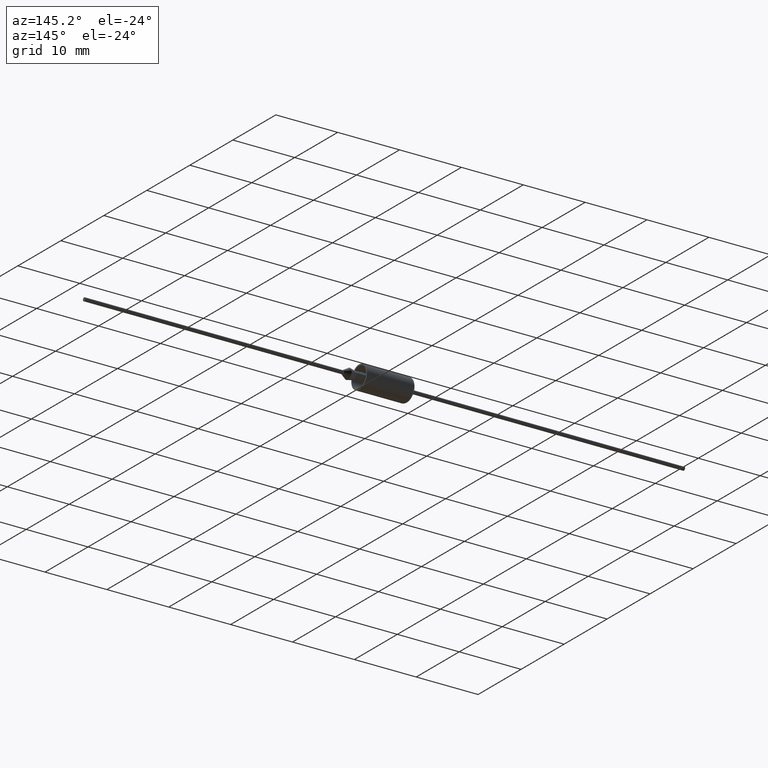
[diagram: clean part render]
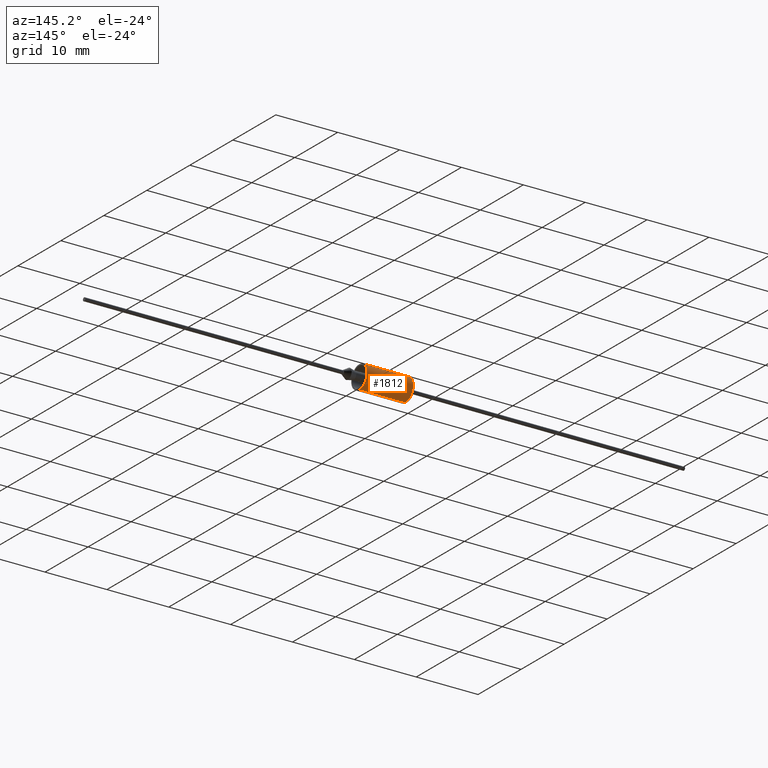
[diagram: same view with one face highlighted and labeled with its STEP entity id]
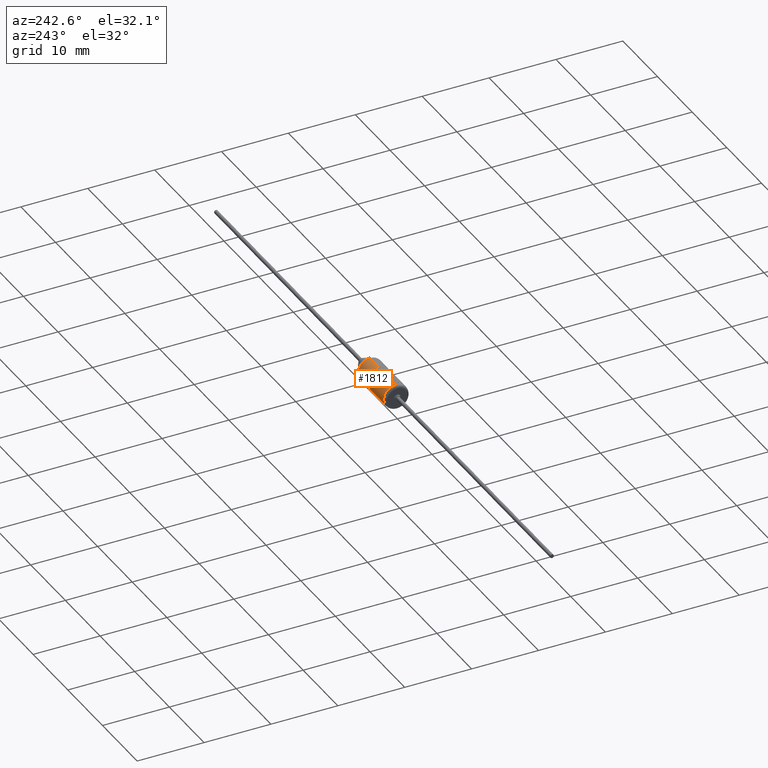
[diagram: same view with one face highlighted and labeled with its STEP entity id]
A machine part, auxiliary view. The second image highlights one B-rep face of the part: STEP entity #1812.
A second angle (auxiliary view) of the same face is appended — the face is thin or edge-on in the first view.
In plain terms, the highlighted cylindrical surface (edge-blend (fillet) strip) has radius 1.84 mm, axis along (-1, -0, -0).
Its self-contained STEP definition (entity closure, byte-faithful):
#7 = VERTEX_POINT ( 'NONE', #967 ) ;
#9 = CARTESIAN_POINT ( 'NONE',  ( 4.060353136190324900, 0.5004695805994374700, 1.770629887609102700 ) ) ;
#25 = CARTESIAN_POINT ( 'NONE',  ( 7.880000000000001700, 0.0000000000000000000, 0.0000000000000000000 ) ) ;
#30 = CARTESIAN_POINT ( 'NONE',  ( 3.914628524202696800, -2.048666033496737600E-008, 1.839846082543360500 ) ) ;
#52 = EDGE_CURVE ( 'NONE', #1911, #1219, #3604, .T. ) ;
#62 = EDGE_CURVE ( 'NONE', #7, #3639, #1597, .T. ) ;
#68 = AXIS2_PLACEMENT_3D ( 'NONE', #3329, #2017, #2989 ) ;
#74 = VERTEX_POINT ( 'NONE', #3730 ) ;
#85 = EDGE_CURVE ( 'NONE', #2042, #1550, #211, .T. ) ;
#114 = EDGE_CURVE ( 'NONE', #1891, #575, #2248, .T. ) ;
#118 = VERTEX_POINT ( 'NONE', #1448 ) ;
#125 = ORIENTED_EDGE ( 'NONE', *, *, #62, .F. ) ;
#131 = CARTESIAN_POINT ( 'NONE',  ( 3.914628524202696800, -2.048666033496737600E-008, 1.839846082543360500 ) ) ;
#141 = EDGE_CURVE ( 'NONE', #3639, #2630, #2029, .T. ) ;
#153 = LINE ( 'NONE', #4350, #3646 ) ;
#177 = EDGE_CURVE ( 'NONE', #74, #1561, #738, .T. ) ;
#190 = ORIENTED_EDGE ( 'NONE', *, *, #3815, .F. ) ;
#195 = EDGE_CURVE ( 'NONE', #3417, #1181, #1100, .T. ) ;
#203 = DIRECTION ( 'NONE',  ( -1.000000000000000000, 0.0000000000000000000, 0.0000000000000000000 ) ) ;
#211 = B_SPLINE_CURVE_WITH_KNOTS ( 'NONE', 3,
 ( #1799, #2477, #2791, #762 ),
 .UNSPECIFIED., .F., .F.,
 ( 4, 4 ),
 ( 0.9157199472872447100, 1.000000000000000000 ),
 .UNSPECIFIED. ) ;
#215 = CARTESIAN_POINT ( 'NONE',  ( 5.468137733834959500, 0.3107186965343054500, 1.813574892752990900 ) ) ;
#218 = DIRECTION ( 'NONE',  ( -1.000000000000000000, -0.0000000000000000000, -0.0000000000000000000 ) ) ;
#237 = EDGE_CURVE ( 'NONE', #1833, #1862, #1264, .T. ) ;
#244 = ORIENTED_EDGE ( 'NONE', *, *, #1745, .F. ) ;
#269 = EDGE_CURVE ( 'NONE', #1065, #74, #153, .T. ) ;
#292 = EDGE_CURVE ( 'NONE', #1038, #997, #923, .T. ) ;
#315 = DIRECTION ( 'NONE',  ( 0.0000000000000000000, 0.0000000000000000000, -1.000000000000000000 ) ) ;
#336 = CARTESIAN_POINT ( 'NONE',  ( 0.4000000000000001900, 2.253350110431129800E-016, -1.840000000000000100 ) ) ;
#350 = LINE ( 'NONE', #890, #2747 ) ;
#369 = DIRECTION ( 'NONE',  ( -1.000000000000000000, 0.0000000000000000000, 0.0000000000000000000 ) ) ;
#378 = CARTESIAN_POINT ( 'NONE',  ( 5.408296261796127000, 0.1040220370095145800, 1.839903404342194700 ) ) ;
#402 = CARTESIAN_POINT ( 'NONE',  ( 2.724806865509795500, -2.731610141441178600E-007, 1.839935116090621400 ) ) ;
#416 = CYLINDRICAL_SURFACE ( 'NONE', #1308, 1.840000000000000100 ) ;
#420 = VERTEX_POINT ( 'NONE', #402 ) ;
#436 = CARTESIAN_POINT ( 'NONE',  ( 3.290698362564452100, 0.3377830553055264400, 1.816613329802640300 ) ) ;
#438 = VERTEX_POINT ( 'NONE', #131 ) ;
#446 = DIRECTION ( 'NONE',  ( -1.000000000000000000, -0.0000000000000000000, -0.0000000000000000000 ) ) ;
#450 = CARTESIAN_POINT ( 'NONE',  ( 2.870495211022034500, 0.5004695805994358000, 1.770629887609103100 ) ) ;
#459 = CARTESIAN_POINT ( 'NONE',  ( 1.879360732209520500, -2.051499111517059300E-008, 1.839846076748572500 ) ) ;
#460 = CARTESIAN_POINT ( 'NONE',  ( 2.715447210238453500, 0.3134373711946313300, 1.813107005760718800 ) ) ;
#474 = CARTESIAN_POINT ( 'NONE',  ( 3.618218030391421500, 0.5004695805994358000, 1.770629887609103100 ) ) ;
#482 = CARTESIAN_POINT ( 'NONE',  ( 2.773356864988581800, 0.1688990220421916200, 1.839814574048296700 ) ) ;
#505 = EDGE_CURVE ( 'NONE', #118, #653, #1082, .T. ) ;
#514 = CARTESIAN_POINT ( 'NONE',  ( 0.9423983057587279600, 0.5004695805994358000, 1.770629887609103100 ) ) ;
#538 = B_SPLINE_CURVE_WITH_KNOTS ( 'NONE', 3,
 ( #4115, #378, #3446, #2730 ),
 .UNSPECIFIED., .F., .F.,
 ( 4, 4 ),
 ( 0.6162172407071003800, 1.000000000000000000 ),
 .UNSPECIFIED. ) ;
#545 = CARTESIAN_POINT ( 'NONE',  ( 1.414902557476005900, 2.458944981940675600E-008, 1.839998400632419700 ) ) ;
#553 = CARTESIAN_POINT ( 'NONE',  ( 1.106206530843390400, 0.07695055024994139300, 1.838390223216015400 ) ) ;
#566 = B_SPLINE_CURVE_WITH_KNOTS ( 'NONE', 3,
 ( #3481, #2478, #3530, #459 ),
 .UNSPECIFIED., .F., .F.,
 ( 4, 4 ),
 ( 0.0000000000000000000, 0.5027971396065609200 ),
 .UNSPECIFIED. ) ;
#573 = ORIENTED_EDGE ( 'NONE', *, *, #3950, .F. ) ;
#575 = VERTEX_POINT ( 'NONE', #2381 ) ;
#582 = CARTESIAN_POINT ( 'NONE',  ( 2.597866027458870500, -2.123882271318428400E-010, 1.839999814210531400 ) ) ;
#583 = CARTESIAN_POINT ( 'NONE',  ( 5.652138932945122800, 0.3107042987392925100, 1.813577359474436700 ) ) ;
#645 = ORIENTED_EDGE ( 'NONE', *, *, #2005, .F. ) ;
#646 = CARTESIAN_POINT ( 'NONE',  ( 0.4000000000000001900, 0.0000000000000000000, 1.840000000000000100 ) ) ;
#653 = VERTEX_POINT ( 'NONE', #2697 ) ;
#654 = CARTESIAN_POINT ( 'NONE',  ( 5.468137733834959500, 0.3107186965343054500, 1.813574892752990900 ) ) ;
#671 = B_SPLINE_CURVE_WITH_KNOTS ( 'NONE', 3,
 ( #2422, #732, #3792, #3463 ),
 .UNSPECIFIED., .F., .F.,
 ( 4, 4 ),
 ( 0.0000000000000000000, 0.7038239970581673400 ),
 .UNSPECIFIED. ) ;
#675 = VECTOR ( 'NONE', #3439, 1000.000000000000000 ) ;
#732 = CARTESIAN_POINT ( 'NONE',  ( 3.534378521230051400, 0.3378002526396993200, 1.816608468966007100 ) ) ;
#738 = B_SPLINE_CURVE_WITH_KNOTS ( 'NONE', 3,
 ( #4325, #2322, #3644, #553 ),
 .UNSPECIFIED., .F., .F.,
 ( 4, 4 ),
 ( 0.0000000000000000000, 1.000000000000000000 ),
 .UNSPECIFIED. ) ;
#762 = CARTESIAN_POINT ( 'NONE',  ( 1.395778227211428700, 0.04613266516111926000, 1.839421587675085500 ) ) ;
#774 = CARTESIAN_POINT ( 'NONE',  ( 4.036011524738494700, -2.050099939516143600E-008, 1.839846079611546600 ) ) ;
#792 = DIRECTION ( 'NONE',  ( -1.000000000000000000, -0.0000000000000000000, -0.0000000000000000000 ) ) ;
#795 = EDGE_CURVE ( 'NONE', #3440, #1130, #3283, .T. ) ;
#814 = ORIENTED_EDGE ( 'NONE', *, *, #2537, .F. ) ;
#819 = CARTESIAN_POINT ( 'NONE',  ( 7.880000000000001700, 0.0000000000000000000, 1.840000000000000100 ) ) ;
#826 = EDGE_CURVE ( 'NONE', #1829, #438, #2499, .T. ) ;
#861 = CARTESIAN_POINT ( 'NONE',  ( 4.930153294796409300, 0.5004695805994374700, 1.770629887609102700 ) ) ;
#886 = CARTESIAN_POINT ( 'NONE',  ( 5.744139532500205400, 0.3106970998307701000, 1.813578592770864500 ) ) ;
#890 = CARTESIAN_POINT ( 'NONE',  ( 7.880000000000001700, 2.253350110431129800E-016, -1.840000000000000100 ) ) ;
#902 = CARTESIAN_POINT ( 'NONE',  ( 5.800082189269351900, 0.5004695805994374700, 1.770629887609102700 ) ) ;
#905 = CARTESIAN_POINT ( 'NONE',  ( 5.744139532500205400, 0.3106970998307701000, 1.813578592770864500 ) ) ;
#906 = ORIENTED_EDGE ( 'NONE', *, *, #1098, .F. ) ;
#916 = VERTEX_POINT ( 'NONE', #1044 ) ;
#923 = B_SPLINE_CURVE_WITH_KNOTS ( 'NONE', 3,
 ( #3655, #1681, #1992, #2333 ),
 .UNSPECIFIED., .F., .F.,
 ( 4, 4 ),
 ( 0.0000000000000000000, 1.000000000000000000 ),
 .UNSPECIFIED. ) ;
#941 = VERTEX_POINT ( 'NONE', #4032 ) ;
#942 = DIRECTION ( 'NONE',  ( -1.000000000000000000, 0.0000000000000000000, 0.0000000000000000000 ) ) ;
#967 = CARTESIAN_POINT ( 'NONE',  ( 7.880000000000001700, 2.253350110431129800E-016, -1.840000000000000100 ) ) ;
#981 = EDGE_CURVE ( 'NONE', #916, #2661, #1855, .T. ) ;
#997 = VERTEX_POINT ( 'NONE', #2439 ) ;
#999 = DIRECTION ( 'NONE',  ( 1.000000000000000000, 0.0000000000000000000, 0.0000000000000000000 ) ) ;
#1012 = VERTEX_POINT ( 'NONE', #4068 ) ;
#1038 = VERTEX_POINT ( 'NONE', #4129 ) ;
#1044 = CARTESIAN_POINT ( 'NONE',  ( 3.299798948356262000, 0.5004695805994358000, 1.770629887609103100 ) ) ;
#1065 = VERTEX_POINT ( 'NONE', #3380 ) ;
#1071 = DIRECTION ( 'NONE',  ( -1.000000000000000000, 0.0000000000000000000, 0.0000000000000000000 ) ) ;
#1075 = CARTESIAN_POINT ( 'NONE',  ( 2.769945736530865100, 0.5004695805994358000, 1.770629887609103100 ) ) ;
#1079 = EDGE_CURVE ( 'NONE', #2471, #2042, #3929, .T. ) ;
#1082 = B_SPLINE_CURVE_WITH_KNOTS ( 'NONE', 3,
 ( #514, #2883, #3884, #1890 ),
 .UNSPECIFIED., .F., .F.,
 ( 4, 4 ),
 ( 0.0000000000000000000, 0.5027971398948512000 ),
 .UNSPECIFIED. ) ;
#1090 = CARTESIAN_POINT ( 'NONE',  ( 1.188353657976029700, 0.3625669869894859700, 1.809608136914913100 ) ) ;
#1098 = EDGE_CURVE ( 'NONE', #1219, #2471, #566, .T. ) ;
#1100 = LINE ( 'NONE', #1571, #2137 ) ;
#1106 = CARTESIAN_POINT ( 'NONE',  ( 7.880000000000001700, 0.0000000000000000000, 1.840000000000000100 ) ) ;
#1130 = VERTEX_POINT ( 'NONE', #2829 ) ;
#1144 = DIRECTION ( 'NONE',  ( -1.000000000000000000, 0.0000000000000000000, 0.0000000000000000000 ) ) ;
#1149 = ORIENTED_EDGE ( 'NONE', *, *, #826, .F. ) ;
#1181 = VERTEX_POINT ( 'NONE', #474 ) ;
#1197 = CARTESIAN_POINT ( 'NONE',  ( 2.751779500965870500, 0.4389200956234163800, 1.788026885789030000 ) ) ;
#1201 = VECTOR ( 'NONE', #2074, 1000.000000000000000 ) ;
#1219 = VERTEX_POINT ( 'NONE', #1224 ) ;
#1220 = DIRECTION ( 'NONE',  ( 1.000000000000000000, 0.0000000000000000000, 0.0000000000000000000 ) ) ;
#1224 = CARTESIAN_POINT ( 'NONE',  ( 2.025213259738551500, 0.5004695805994358000, 1.770629887609103100 ) ) ;
#1234 = CARTESIAN_POINT ( 'NONE',  ( 2.256157661503412000, 0.3134373711946313300, 1.813107005760718800 ) ) ;
#1242 = ORIENTED_EDGE ( 'NONE', *, *, #2909, .F. ) ;
#1246 = CARTESIAN_POINT ( 'NONE',  ( 2.634275670684876700, 0.1273695519364448400, 1.835586281611275800 ) ) ;
#1264 = CIRCLE ( 'NONE', #68, 1.840000000000000100 ) ;
#1282 = CARTESIAN_POINT ( 'NONE',  ( 5.560138333390041200, 0.3107114976404709000, 1.813576126135145700 ) ) ;
#1308 = AXIS2_PLACEMENT_3D ( 'NONE', #2013, #3717, #3067 ) ;
#1311 = VECTOR ( 'NONE', #369, 1000.000000000000000 ) ;
#1323 = CARTESIAN_POINT ( 'NONE',  ( 4.036011524738494700, -2.050099939516143600E-008, 1.839846079611546600 ) ) ;
#1325 = ORIENTED_EDGE ( 'NONE', *, *, #2479, .F. ) ;
#1327 = EDGE_CURVE ( 'NONE', #7, #1833, #350, .T. ) ;
#1342 = VERTEX_POINT ( 'NONE', #3949 ) ;
#1353 = B_SPLINE_CURVE_WITH_KNOTS ( 'NONE', 3,
 ( #2142, #3829, #436, #1553 ),
 .UNSPECIFIED., .F., .F.,
 ( 4, 4 ),
 ( 0.2961689496377194500, 1.000000000000000000 ),
 .UNSPECIFIED. ) ;
#1361 = FACE_OUTER_BOUND ( 'NONE', #3219, .T. ) ;
#1448 = CARTESIAN_POINT ( 'NONE',  ( 0.9423983057587279600, 0.5004695805994358000, 1.770629887609103100 ) ) ;
#1473 = VECTOR ( 'NONE', #3225, 1000.000000000000000 ) ;
#1550 = VERTEX_POINT ( 'NONE', #4243 ) ;
#1553 = CARTESIAN_POINT ( 'NONE',  ( 3.299798948356262000, 0.5004695805994358000, 1.770629887609103100 ) ) ;
#1561 = VERTEX_POINT ( 'NONE', #1915 ) ;
#1571 = CARTESIAN_POINT ( 'NONE',  ( 4.060353136190324900, 0.5004695805994358000, 1.770629887609103100 ) ) ;
#1597 = CIRCLE ( 'NONE', #4126, 1.840000000000000100 ) ;
#1603 = EDGE_CURVE ( 'NONE', #575, #2007, #1985, .T. ) ;
#1628 = LINE ( 'NONE', #1234, #3276 ) ;
#1633 = LINE ( 'NONE', #4171, #1864 ) ;
#1638 = VERTEX_POINT ( 'NONE', #2942 ) ;
#1660 = ORIENTED_EDGE ( 'NONE', *, *, #237, .T. ) ;
#1681 = CARTESIAN_POINT ( 'NONE',  ( 2.219784496584735800, 0.1897204501598087600, 1.831259813251219200 ) ) ;
#1682 = B_SPLINE_CURVE_WITH_KNOTS ( 'NONE', 3,
 ( #1712, #3086, #1090, #2806 ),
 .UNSPECIFIED., .F., .F.,
 ( 4, 4 ),
 ( 0.0000000000000000000, 1.000000000000000000 ),
 .UNSPECIFIED. ) ;
#1712 = CARTESIAN_POINT ( 'NONE',  ( 1.106206530843390400, 0.07695055024994139300, 1.838390223216015400 ) ) ;
#1718 = B_SPLINE_CURVE_WITH_KNOTS ( 'NONE', 3,
 ( #215, #1282, #583, #905 ),
 .UNSPECIFIED., .F., .F.,
 ( 4, 4 ),
 ( 0.0000000000000000000, 1.000000000000000000 ),
 .UNSPECIFIED. ) ;
#1745 = EDGE_CURVE ( 'NONE', #2906, #941, #1718, .T. ) ;
#1760 = CARTESIAN_POINT ( 'NONE',  ( 1.709502719786331500, 0.3526784876644141800, 1.812403127073279400 ) ) ;
#1799 = CARTESIAN_POINT ( 'NONE',  ( 1.414902557476005900, 2.458944981940675600E-008, 1.839998400632419700 ) ) ;
#1812 = ADVANCED_FACE ( 'NONE', ( #1361 ), #416, .T. ) ;
#1829 = VERTEX_POINT ( 'NONE', #1323 ) ;
#1833 = VERTEX_POINT ( 'NONE', #336 ) ;
#1855 = LINE ( 'NONE', #3430, #3585 ) ;
#1858 = CARTESIAN_POINT ( 'NONE',  ( 1.866378213314612700, 0.5004695805994358000, 1.770629887609103100 ) ) ;
#1862 = VERTEX_POINT ( 'NONE', #646 ) ;
#1864 = VECTOR ( 'NONE', #792, 1000.000000000000000 ) ;
#1890 = CARTESIAN_POINT ( 'NONE',  ( 0.7967368807645235400, -2.047476104401469700E-008, 1.839846085404367700 ) ) ;
#1891 = VERTEX_POINT ( 'NONE', #2415 ) ;
#1911 = VERTEX_POINT ( 'NONE', #1075 ) ;
#1915 = CARTESIAN_POINT ( 'NONE',  ( 1.106206530843390400, 0.07695055024994139300, 1.838390223216015400 ) ) ;
#1930 = ORIENTED_EDGE ( 'NONE', *, *, #505, .F. ) ;
#1948 = ORIENTED_EDGE ( 'NONE', *, *, #3371, .F. ) ;
#1975 = EDGE_CURVE ( 'NONE', #1550, #1065, #3940, .T. ) ;
#1985 = LINE ( 'NONE', #861, #3658 ) ;
#1992 = CARTESIAN_POINT ( 'NONE',  ( 2.237970996950593900, 0.2518500453812008200, 1.823753795740866500 ) ) ;
#1993 = ORIENTED_EDGE ( 'NONE', *, *, #1603, .F. ) ;
#2005 = EDGE_CURVE ( 'NONE', #2661, #420, #2433, .T. ) ;
#2007 = VERTEX_POINT ( 'NONE', #4194 ) ;
#2013 = CARTESIAN_POINT ( 'NONE',  ( 7.880000000000001700, 0.0000000000000000000, 0.0000000000000000000 ) ) ;
#2017 = DIRECTION ( 'NONE',  ( 1.000000000000000000, 0.0000000000000000000, 0.0000000000000000000 ) ) ;
#2025 = ORIENTED_EDGE ( 'NONE', *, *, #3179, .F. ) ;
#2029 = LINE ( 'NONE', #3510, #4022 ) ;
#2042 = VERTEX_POINT ( 'NONE', #545 ) ;
#2044 = VERTEX_POINT ( 'NONE', #3666 ) ;
#2074 = DIRECTION ( 'NONE',  ( -1.000000000000000000, 0.0000000000000000000, 0.0000000000000000000 ) ) ;
#2077 = CARTESIAN_POINT ( 'NONE',  ( 3.963160324771759900, 0.1687994159793465000, 1.839689824655053700 ) ) ;
#2090 = ORIENTED_EDGE ( 'NONE', *, *, #269, .F. ) ;
#2113 = CARTESIAN_POINT ( 'NONE',  ( 4.181800865273505300, 0.5004695805994358000, 1.770629887609103100 ) ) ;
#2137 = VECTOR ( 'NONE', #2930, 1000.000000000000000 ) ;
#2142 = CARTESIAN_POINT ( 'NONE',  ( 3.272514828038169300, -2.847916091360750800E-008, 1.839968149164556500 ) ) ;
#2193 = EDGE_CURVE ( 'NONE', #1638, #1911, #3747, .T. ) ;
#2218 = CARTESIAN_POINT ( 'NONE',  ( 2.821887314088260100, 0.3377373089640412500, 1.816626260033004800 ) ) ;
#2248 = LINE ( 'NONE', #3476, #3821 ) ;
#2255 = CARTESIAN_POINT ( 'NONE',  ( 2.870495211022034500, 0.5004695805994358000, 1.770629887609103100 ) ) ;
#2271 = ORIENTED_EDGE ( 'NONE', *, *, #795, .F. ) ;
#2292 = DIRECTION ( 'NONE',  ( -1.000000000000000000, -0.0000000000000000000, -0.0000000000000000000 ) ) ;
#2322 = CARTESIAN_POINT ( 'NONE',  ( 1.391815849623749200, 0.3625717324918396600, 1.809606795595877900 ) ) ;
#2333 = CARTESIAN_POINT ( 'NONE',  ( 2.256157661503412000, 0.3134373711946313300, 1.813107005760718800 ) ) ;
#2350 = ORIENTED_EDGE ( 'NONE', *, *, #195, .F. ) ;
#2381 = CARTESIAN_POINT ( 'NONE',  ( 4.930153294796409300, 0.5004695805994374700, 1.770629887609102700 ) ) ;
#2413 = CARTESIAN_POINT ( 'NONE',  ( 4.011691336128045300, 0.3375965600923783200, 1.816666042784478700 ) ) ;
#2415 = CARTESIAN_POINT ( 'NONE',  ( 5.800082189269351900, 0.5004695805994374700, 1.770629887609102700 ) ) ;
#2416 = CARTESIAN_POINT ( 'NONE',  ( 4.133117454606571400, 0.3375965741078957900, 1.816666038822984300 ) ) ;
#2422 = CARTESIAN_POINT ( 'NONE',  ( 3.618218030391421500, 0.5004695805994358000, 1.770629887609103100 ) ) ;
#2433 = B_SPLINE_CURVE_WITH_KNOTS ( 'NONE', 3,
 ( #450, #2218, #482, #3234 ),
 .UNSPECIFIED., .F., .F.,
 ( 4, 4 ),
 ( 0.0000000000000000000, 0.6209685866594604200 ),
 .UNSPECIFIED. ) ;
#2439 = CARTESIAN_POINT ( 'NONE',  ( 2.256157661503412000, 0.3134373711946313300, 1.813107005760718800 ) ) ;
#2471 = VERTEX_POINT ( 'NONE', #2750 ) ;
#2477 = CARTESIAN_POINT ( 'NONE',  ( 1.408528082254834700, 0.01537847135662993700, 1.839998739414088600 ) ) ;
#2478 = CARTESIAN_POINT ( 'NONE',  ( 1.976508753142867600, 0.3375965877943288800, 1.816666034954506100 ) ) ;
#2479 = EDGE_CURVE ( 'NONE', #438, #3417, #2831, .T. ) ;
#2499 = LINE ( 'NONE', #4284, #675 ) ;
#2537 = EDGE_CURVE ( 'NONE', #653, #1862, #3338, .T. ) ;
#2588 = CARTESIAN_POINT ( 'NONE',  ( 4.060353136190324900, 0.5004695805994374700, 1.770629887609102700 ) ) ;
#2594 = ORIENTED_EDGE ( 'NONE', *, *, #981, .F. ) ;
#2598 = ORIENTED_EDGE ( 'NONE', *, *, #1975, .F. ) ;
#2630 = VERTEX_POINT ( 'NONE', #3272 ) ;
#2661 = VERTEX_POINT ( 'NONE', #2255 ) ;
#2665 = ORIENTED_EDGE ( 'NONE', *, *, #3501, .F. ) ;
#2697 = CARTESIAN_POINT ( 'NONE',  ( 0.7967368807645235400, -2.047476104401469700E-008, 1.839846085404367700 ) ) ;
#2730 = CARTESIAN_POINT ( 'NONE',  ( 5.468137733834959500, 0.3107186965343054500, 1.813574892752990900 ) ) ;
#2747 = VECTOR ( 'NONE', #218, 1000.000000000000000 ) ;
#2750 = CARTESIAN_POINT ( 'NONE',  ( 1.879360732209520500, -2.051499111517059300E-008, 1.839846076748572500 ) ) ;
#2759 = DIRECTION ( 'NONE',  ( -1.000000000000000000, 0.0000000000000000000, 0.0000000000000000000 ) ) ;
#2770 = CARTESIAN_POINT ( 'NONE',  ( 4.084564884434895400, 0.1687994229130919400, 1.839689818749846500 ) ) ;
#2781 = CARTESIAN_POINT ( 'NONE',  ( 7.880000000000001700, 0.0000000000000000000, 1.840000000000000100 ) ) ;
#2788 = VECTOR ( 'NONE', #2759, 1000.000000000000000 ) ;
#2791 = CARTESIAN_POINT ( 'NONE',  ( 1.402153302621721200, 0.03075756589084290400, 1.839807194928586800 ) ) ;
#2806 = CARTESIAN_POINT ( 'NONE',  ( 1.229432051315697300, 0.5004695805994358000, 1.770629887609103100 ) ) ;
#2829 = CARTESIAN_POINT ( 'NONE',  ( 3.272514828038169300, -2.847916091360750800E-008, 1.839968149164556500 ) ) ;
#2831 = B_SPLINE_CURVE_WITH_KNOTS ( 'NONE', 3,
 ( #30, #2077, #2413, #9 ),
 .UNSPECIFIED., .F., .F.,
 ( 4, 4 ),
 ( 0.4972028602018266400, 1.000000000000000000 ),
 .UNSPECIFIED. ) ;
#2838 = ORIENTED_EDGE ( 'NONE', *, *, #1079, .F. ) ;
#2851 = DIRECTION ( 'NONE',  ( -1.000000000000000000, -0.0000000000000000000, -0.0000000000000000000 ) ) ;
#2876 = ORIENTED_EDGE ( 'NONE', *, *, #3431, .F. ) ;
#2883 = CARTESIAN_POINT ( 'NONE',  ( 0.8937576016349886300, 0.3375965464146764000, 1.816666046650489100 ) ) ;
#2906 = VERTEX_POINT ( 'NONE', #654 ) ;
#2909 = EDGE_CURVE ( 'NONE', #2630, #2906, #538, .T. ) ;
#2930 = DIRECTION ( 'NONE',  ( -1.000000000000000000, 0.0000000000000000000, 0.0000000000000000000 ) ) ;
#2936 = B_SPLINE_CURVE_WITH_KNOTS ( 'NONE', 3,
 ( #582, #3985, #2956, #1246 ),
 .UNSPECIFIED., .F., .F.,
 ( 4, 4 ),
 ( 0.3159879309321811900, 1.000000000000000000 ),
 .UNSPECIFIED. ) ;
#2938 = CARTESIAN_POINT ( 'NONE',  ( 5.762787149996892600, 0.3746530972327689600, 1.802621834134214800 ) ) ;
#2942 = CARTESIAN_POINT ( 'NONE',  ( 2.715447210238453500, 0.3134373711946313300, 1.813107005760718800 ) ) ;
#2954 = EDGE_CURVE ( 'NONE', #1181, #3440, #671, .T. ) ;
#2956 = CARTESIAN_POINT ( 'NONE',  ( 2.622139083284427100, 0.08498084120128782100, 1.838527593140778700 ) ) ;
#2989 = DIRECTION ( 'NONE',  ( 0.0000000000000000000, 0.0000000000000000000, -1.000000000000000000 ) ) ;
#3067 = DIRECTION ( 'NONE',  ( 0.0000000000000000000, 0.0000000000000000000, 1.000000000000000000 ) ) ;
#3084 = ORIENTED_EDGE ( 'NONE', *, *, #177, .F. ) ;
#3086 = CARTESIAN_POINT ( 'NONE',  ( 1.147284924183057800, 0.2201305460371987000, 1.832397056302116400 ) ) ;
#3121 = CARTESIAN_POINT ( 'NONE',  ( 1.395778227211428700, 0.04613266516111926000, 1.839421587675085500 ) ) ;
#3178 = ORIENTED_EDGE ( 'NONE', *, *, #52, .F. ) ;
#3179 = EDGE_CURVE ( 'NONE', #420, #1342, #1633, .T. ) ;
#3194 = CARTESIAN_POINT ( 'NONE',  ( 7.880000000000001700, 0.0000000000000000000, 1.840000000000000100 ) ) ;
#3219 = EDGE_LOOP ( 'NONE', ( #125, #3626, #1660, #814, #1930, #190, #3778, #3084, #2090, #2598, #3648, #2838, #906, #3178, #4314, #2665, #3781, #3286, #3937, #2025, #645, #2594, #1948, #2271, #3238, #2350, #1325, #1149, #573, #1993, #4145, #2876, #244, #1242, #3595 ) ) ;
#3225 = DIRECTION ( 'NONE',  ( -1.000000000000000000, -0.0000000000000000000, -0.0000000000000000000 ) ) ;
#3234 = CARTESIAN_POINT ( 'NONE',  ( 2.724806865509795500, -2.731610141441178600E-007, 1.839935116090621400 ) ) ;
#3238 = ORIENTED_EDGE ( 'NONE', *, *, #2954, .F. ) ;
#3272 = CARTESIAN_POINT ( 'NONE',  ( 5.378397624818455300, 2.605604261437166200E-007, 1.839935305401931200 ) ) ;
#3276 = VECTOR ( 'NONE', #1220, 1000.000000000000000 ) ;
#3283 = LINE ( 'NONE', #819, #1473 ) ;
#3286 = ORIENTED_EDGE ( 'NONE', *, *, #4209, .F. ) ;
#3287 = CARTESIAN_POINT ( 'NONE',  ( 5.781434571772663800, 0.4380281727976321800, 1.788278988301063200 ) ) ;
#3329 = CARTESIAN_POINT ( 'NONE',  ( 0.4000000000000001900, 0.0000000000000000000, 0.0000000000000000000 ) ) ;
#3330 = EDGE_CURVE ( 'NONE', #1561, #2044, #1682, .T. ) ;
#3338 = LINE ( 'NONE', #3194, #4078 ) ;
#3371 = EDGE_CURVE ( 'NONE', #1130, #916, #1353, .T. ) ;
#3380 = CARTESIAN_POINT ( 'NONE',  ( 1.866378213314612700, 0.5004695805994358000, 1.770629887609103100 ) ) ;
#3417 = VERTEX_POINT ( 'NONE', #2588 ) ;
#3430 = CARTESIAN_POINT ( 'NONE',  ( 3.299798948356262000, 0.5004695805994358000, 1.770629887609103100 ) ) ;
#3431 = EDGE_CURVE ( 'NONE', #941, #1891, #3587, .T. ) ;
#3439 = DIRECTION ( 'NONE',  ( -1.000000000000000000, -0.0000000000000000000, -0.0000000000000000000 ) ) ;
#3440 = VERTEX_POINT ( 'NONE', #3473 ) ;
#3441 = EDGE_CURVE ( 'NONE', #1342, #1012, #2936, .T. ) ;
#3446 = CARTESIAN_POINT ( 'NONE',  ( 5.438202441124676800, 0.2080656814782325400, 1.831162372134733400 ) ) ;
#3463 = CARTESIAN_POINT ( 'NONE',  ( 3.366835218946568500, -4.635719608455202800E-007, 1.839966984188047700 ) ) ;
#3473 = CARTESIAN_POINT ( 'NONE',  ( 3.366835218946568500, -4.635719608455202800E-007, 1.839966984188047700 ) ) ;
#3476 = CARTESIAN_POINT ( 'NONE',  ( 5.800082189269351900, 0.5004695805994374700, 1.770629887609102700 ) ) ;
#3481 = CARTESIAN_POINT ( 'NONE',  ( 2.025213259738551500, 0.5004695805994358000, 1.770629887609103100 ) ) ;
#3488 = CARTESIAN_POINT ( 'NONE',  ( 1.552653720739709800, 0.1996656698354359900, 1.835570982276475900 ) ) ;
#3501 = EDGE_CURVE ( 'NONE', #997, #1638, #1628, .T. ) ;
#3510 = CARTESIAN_POINT ( 'NONE',  ( 7.880000000000001700, 0.0000000000000000000, 1.840000000000000100 ) ) ;
#3530 = CARTESIAN_POINT ( 'NONE',  ( 1.927935137590791200, 0.1687994296840384900, 1.839689812983294600 ) ) ;
#3533 = CARTESIAN_POINT ( 'NONE',  ( 2.733613445803448000, 0.3764634181352913800, 1.802211499644916300 ) ) ;
#3560 = CARTESIAN_POINT ( 'NONE',  ( 2.769945736530865100, 0.5004695805994358000, 1.770629887609103100 ) ) ;
#3585 = VECTOR ( 'NONE', #1071, 1000.000000000000000 ) ;
#3587 = B_SPLINE_CURVE_WITH_KNOTS ( 'NONE', 3,
 ( #886, #2938, #3287, #902 ),
 .UNSPECIFIED., .F., .F.,
 ( 4, 4 ),
 ( 0.0000000000000000000, 1.000000000000000000 ),
 .UNSPECIFIED. ) ;
#3595 = ORIENTED_EDGE ( 'NONE', *, *, #141, .F. ) ;
#3604 = LINE ( 'NONE', #3714, #1311 ) ;
#3626 = ORIENTED_EDGE ( 'NONE', *, *, #1327, .T. ) ;
#3639 = VERTEX_POINT ( 'NONE', #1106 ) ;
#3644 = CARTESIAN_POINT ( 'NONE',  ( 1.249020610083404000, 0.2201256189289463300, 1.832397262538902400 ) ) ;
#3646 = VECTOR ( 'NONE', #942, 1000.000000000000000 ) ;
#3648 = ORIENTED_EDGE ( 'NONE', *, *, #85, .F. ) ;
#3655 = CARTESIAN_POINT ( 'NONE',  ( 2.201597832031917600, 0.1273695519364448100, 1.835586281611275800 ) ) ;
#3658 = VECTOR ( 'NONE', #203, 1000.000000000000000 ) ;
#3666 = CARTESIAN_POINT ( 'NONE',  ( 1.229432051315697300, 0.5004695805994358000, 1.770629887609103100 ) ) ;
#3678 = LINE ( 'NONE', #3705, #2788 ) ;
#3705 = CARTESIAN_POINT ( 'NONE',  ( 1.229432051315697300, 0.5004695805994358000, 1.770629887609103100 ) ) ;
#3712 = VECTOR ( 'NONE', #446, 1000.000000000000000 ) ;
#3714 = CARTESIAN_POINT ( 'NONE',  ( 2.769945736530865100, 0.5004695805994358000, 1.770629887609103100 ) ) ;
#3717 = DIRECTION ( 'NONE',  ( -1.000000000000000000, -0.0000000000000000000, -0.0000000000000000000 ) ) ;
#3730 = CARTESIAN_POINT ( 'NONE',  ( 1.534629928863762800, 0.5004695805994358000, 1.770629887609103100 ) ) ;
#3747 = B_SPLINE_CURVE_WITH_KNOTS ( 'NONE', 3,
 ( #460, #3533, #1197, #3560 ),
 .UNSPECIFIED., .F., .F.,
 ( 4, 4 ),
 ( 0.0000000000000000000, 1.000000000000000000 ),
 .UNSPECIFIED. ) ;
#3778 = ORIENTED_EDGE ( 'NONE', *, *, #3330, .F. ) ;
#3781 = ORIENTED_EDGE ( 'NONE', *, *, #292, .F. ) ;
#3792 = CARTESIAN_POINT ( 'NONE',  ( 3.450624804773427800, 0.1689340285762022900, 1.839873110198380500 ) ) ;
#3815 = EDGE_CURVE ( 'NONE', #2044, #118, #3678, .T. ) ;
#3821 = VECTOR ( 'NONE', #1144, 1000.000000000000000 ) ;
#3829 = CARTESIAN_POINT ( 'NONE',  ( 3.281608927300654300, 0.1689327324786367400, 1.839877499920775200 ) ) ;
#3884 = CARTESIAN_POINT ( 'NONE',  ( 0.8452476356538645200, 0.1687994092116622800, 1.839689830417834200 ) ) ;
#3903 = LINE ( 'NONE', #4071, #1201 ) ;
#3929 = LINE ( 'NONE', #2781, #3712 ) ;
#3937 = ORIENTED_EDGE ( 'NONE', *, *, #3441, .F. ) ;
#3940 = B_SPLINE_CURVE_WITH_KNOTS ( 'NONE', 3,
 ( #3121, #3488, #1760, #1858 ),
 .UNSPECIFIED., .F., .F.,
 ( 4, 4 ),
 ( 0.0000000000000000000, 1.000000000000000000 ),
 .UNSPECIFIED. ) ;
#3949 = CARTESIAN_POINT ( 'NONE',  ( 2.597866027458870500, -2.123882271318428400E-010, 1.839999814210531400 ) ) ;
#3950 = EDGE_CURVE ( 'NONE', #2007, #1829, #4131, .T. ) ;
#3985 = CARTESIAN_POINT ( 'NONE',  ( 2.610002569237239300, 0.04249046684541285500, 1.839999339810285800 ) ) ;
#4022 = VECTOR ( 'NONE', #2292, 1000.000000000000000 ) ;
#4032 = CARTESIAN_POINT ( 'NONE',  ( 5.744139532500205400, 0.3106970998307701000, 1.813578592770864500 ) ) ;
#4068 = CARTESIAN_POINT ( 'NONE',  ( 2.634275670684876700, 0.1273695519364448400, 1.835586281611275800 ) ) ;
#4071 = CARTESIAN_POINT ( 'NONE',  ( 2.634275670684876700, 0.1273695519364448400, 1.835586281611275800 ) ) ;
#4078 = VECTOR ( 'NONE', #2851, 1000.000000000000000 ) ;
#4115 = CARTESIAN_POINT ( 'NONE',  ( 5.378397624818455300, 2.605604261437166200E-007, 1.839935305401931200 ) ) ;
#4126 = AXIS2_PLACEMENT_3D ( 'NONE', #25, #999, #315 ) ;
#4129 = CARTESIAN_POINT ( 'NONE',  ( 2.201597832031917600, 0.1273695519364448100, 1.835586281611275800 ) ) ;
#4131 = B_SPLINE_CURVE_WITH_KNOTS ( 'NONE', 3,
 ( #2113, #2416, #2770, #774 ),
 .UNSPECIFIED., .F., .F.,
 ( 4, 4 ),
 ( 0.0000000000000000000, 0.5027971397012343000 ),
 .UNSPECIFIED. ) ;
#4145 = ORIENTED_EDGE ( 'NONE', *, *, #114, .F. ) ;
#4171 = CARTESIAN_POINT ( 'NONE',  ( 7.880000000000001700, 0.0000000000000000000, 1.840000000000000100 ) ) ;
#4194 = CARTESIAN_POINT ( 'NONE',  ( 4.181800865273505300, 0.5004695805994358000, 1.770629887609103100 ) ) ;
#4209 = EDGE_CURVE ( 'NONE', #1012, #1038, #3903, .T. ) ;
#4243 = CARTESIAN_POINT ( 'NONE',  ( 1.395778227211428700, 0.04613266516111926000, 1.839421587675085500 ) ) ;
#4284 = CARTESIAN_POINT ( 'NONE',  ( 7.880000000000001700, 0.0000000000000000000, 1.840000000000000100 ) ) ;
#4314 = ORIENTED_EDGE ( 'NONE', *, *, #2193, .F. ) ;
#4325 = CARTESIAN_POINT ( 'NONE',  ( 1.534629928863762800, 0.5004695805994358000, 1.770629887609103100 ) ) ;
#4350 = CARTESIAN_POINT ( 'NONE',  ( 1.866378213314612700, 0.5004695805994358000, 1.770629887609103100 ) ) ;